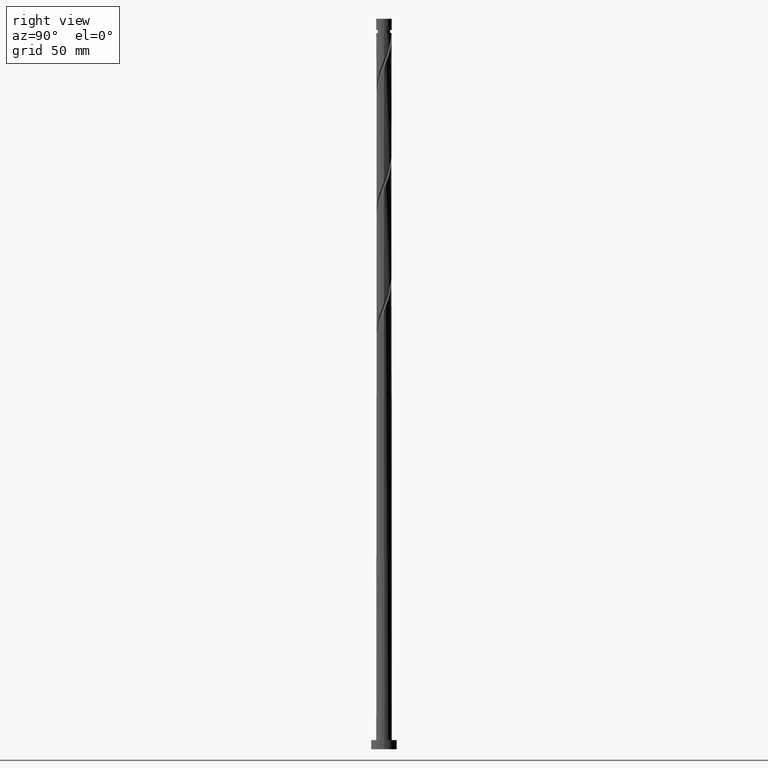
[diagram: clean part render]
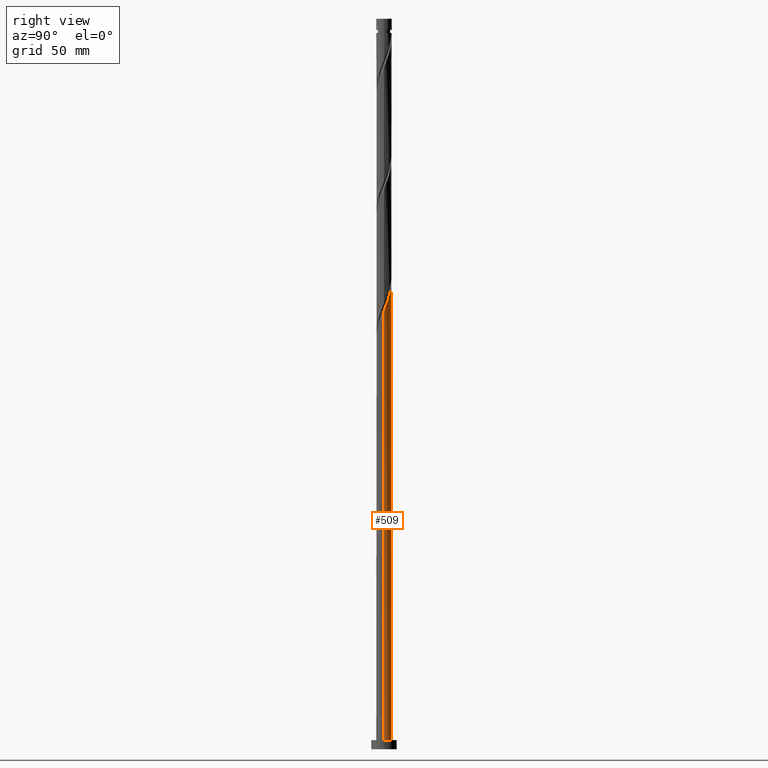
[diagram: same view with one face highlighted and labeled with its STEP entity id]
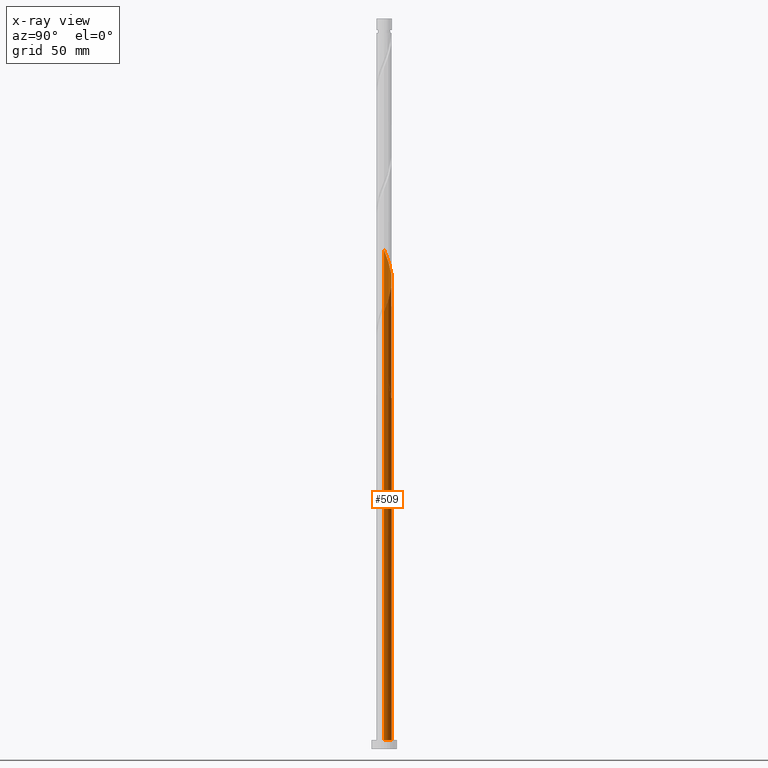
[diagram: x-ray of the same camera — body ghosted, the highlighted face saturated]
A machine part, right view. The second image highlights one B-rep face of the part: STEP entity #509.
The next image is the same camera in x-ray: the body ghosted, the highlighted face saturated — about 0% of this face is hidden behind the body in this view.
In plain terms, the highlighted cylindrical surface (edge-blend (fillet) strip) has radius 4.25 mm, axis along (-0, -0, -1).
Its self-contained STEP definition (entity closure, byte-faithful):
#10 = ORIENTED_EDGE ( 'NONE', *, *, #724, .T. ) ;
#26 = CARTESIAN_POINT ( 'NONE',  ( 3.184126145991878154, 2.814931737433601810, 247.7116386603410945 ) ) ;
#34 = CARTESIAN_POINT ( 'NONE',  ( -3.479987393579910826, 2.480266593869680403, 204.3783053270077232 ) ) ;
#60 = CARTESIAN_POINT ( 'NONE',  ( 3.479987393579918376, 2.480266593869681291, 246.6005275492300655 ) ) ;
#77 = DIRECTION ( 'NONE',  ( 0.000000000000000000, -1.632680918566407345E-14, -1.000000000000000000 ) ) ;
#78 = CARTESIAN_POINT ( 'NONE',  ( -4.187941984382045568, 0.8503978901615346642, 208.8227497714521803 ) ) ;
#104 = CARTESIAN_POINT ( 'NONE',  ( -4.029865467532506074, 1.350068262566401334, 203.2671942158966658 ) ) ;
#152 = CARTESIAN_POINT ( 'NONE',  ( -4.250000000000007105, -4.320092056572194243E-15, 273.3639731945974063 ) ) ;
#172 = EDGE_LOOP ( 'NONE', ( #482, #10, #720, #1893, #240, #1042, #315, #1192 ) ) ;
#194 = CARTESIAN_POINT ( 'NONE',  ( -4.249999999999997335, 0.2033369969687014167, 210.4396444894095737 ) ) ;
#204 = CARTESIAN_POINT ( 'NONE',  ( -3.919617740824329122, 1.702536754950149112, 206.6005275492299802 ) ) ;
#205 = LINE ( 'NONE', #1593, #1937 ) ;
#218 = CARTESIAN_POINT ( 'NONE',  ( 4.230587525814534899, 0.4057452235362851711, 241.0449719936744088 ) ) ;
#240 = ORIENTED_EDGE ( 'NONE', *, *, #1134, .F. ) ;
#246 = CARTESIAN_POINT ( 'NONE',  ( 0.03869430404476644630, 4.249823849388882913, 256.6005275492300370 ) ) ;
#267 = VERTEX_POINT ( 'NONE', #1779 ) ;
#270 = EDGE_CURVE ( 'NONE', #431, #334, #1165, .T. ) ;
#275 = CARTESIAN_POINT ( 'NONE',  ( -1.693210080467173251, 3.898145664723728920, 194.3783053270078369 ) ) ;
#301 = CARTESIAN_POINT ( 'NONE',  ( 4.250000000000007105, 2.899992591609016259E-15, 240.0306398612640919 ) ) ;
#315 = ORIENTED_EDGE ( 'NONE', *, *, #780, .F. ) ;
#334 = VERTEX_POINT ( 'NONE', #1836 ) ;
#343 = VERTEX_POINT ( 'NONE', #1859 ) ;
#345 = CARTESIAN_POINT ( 'NONE',  ( -4.249999999999999112, 1.813242790526680682E-14, 210.9481930149736968 ) ) ;
#354 = CARTESIAN_POINT ( 'NONE',  ( -3.184126145991871049, 2.814931737433600922, 203.2671942158966942 ) ) ;
#355 = DIRECTION ( 'NONE',  ( -0.000000000000000000, -0.000000000000000000, -1.000000000000000000 ) ) ;
#367 = DIRECTION ( 'NONE',  ( -0.000000000000000000, -0.000000000000000000, -1.000000000000000000 ) ) ;
#376 = CARTESIAN_POINT ( 'NONE',  ( -4.053779862603187567, 1.276467322555842276, 207.7116386603411513 ) ) ;
#387 = CARTESIAN_POINT ( 'NONE',  ( -0.9214368028675292699, 4.148910003642071409, 196.6005275492299802 ) ) ;
#431 = VERTEX_POINT ( 'NONE', #1905 ) ;
#460 = VERTEX_POINT ( 'NONE', #1747 ) ;
#461 = CARTESIAN_POINT ( 'NONE',  ( -4.249999999999999112, 1.813242790526680367E-14, 210.9481930149736968 ) ) ;
#468 =( BOUNDED_CURVE ( )  B_SPLINE_CURVE ( 2, ( #345, #194, #1430, #78, #376, #204, #1280, #34, #354, #1592, #815, #692, #1462, #661, #387, #998, #1603, #1290, #1932 ),
 .UNSPECIFIED., .F., .T. ) 
 B_SPLINE_CURVE_WITH_KNOTS ( ( 3, 2, 2, 2, 2, 2, 2, 2, 2, 3 ),
 ( 0.9295286012773117390, 0.9333333333333333481, 0.9416666666666666519, 0.9499999999999999556, 0.9583333333333333703, 0.9666666666666666741, 0.9749999999999999778, 0.9833333333333332815, 0.9916666666666666963, 1.000000000000000000 ),
 .UNSPECIFIED. ) 
 CURVE ( )  GEOMETRIC_REPRESENTATION_ITEM ( )  RATIONAL_B_SPLINE_CURVE ( ( 0.9066196499552315879, 0.9068171577856444232, 0.9090909090909431445, 0.9041108139711915292, 0.9090909090909431445, 0.9041108139711915292, 0.9090909090909431445, 0.9041108139711915292, 0.9090909090909431445, 0.9041108139711915292, 0.9090909090909431445, 0.9041108139711915292, 0.9090909090909431445, 0.9041108139711915292, 0.9090909090909431445, 0.9041108139711915292, 0.9090909090909431445, 0.9041108139711915292, 0.9090909090909431445 ) ) 
 REPRESENTATION_ITEM ( '' )  );
#482 = ORIENTED_EDGE ( 'NONE', *, *, #1360, .F. ) ;
#505 = CARTESIAN_POINT ( 'NONE',  ( 1.763908091860646454, 3.866668882057084922, 252.1560831047855515 ) ) ;
#509 = ADVANCED_FACE ( 'NONE', ( #621 ), #565, .T. ) ;
#533 = AXIS2_PLACEMENT_3D ( 'NONE', #1633, #77, #1105 ) ;
#545 = CARTESIAN_POINT ( 'NONE',  ( -0.4079801816590842845, 4.253890784624646315, 257.7116386603411229 ) ) ;
#555 = CARTESIAN_POINT ( 'NONE',  ( -2.102921699512172893, 3.720182114072092094, 195.4894164381188943 ) ) ;
#564 = CARTESIAN_POINT ( 'NONE',  ( -4.250000000000007105, -4.320092056572194243E-15, 206.6973065279307491 ) ) ;
#565 = CYLINDRICAL_SURFACE ( 'NONE', #798, 4.250000000000000000 ) ;
#572 = CARTESIAN_POINT ( 'NONE',  ( -4.171763359826009321, 0.9265123343778394194, 271.0449719936744941 ) ) ;
#573 = CIRCLE ( 'NONE', #833, 4.250000000000000000 ) ;
#584 = DIRECTION ( 'NONE',  ( -0.000000000000000000, -0.000000000000000000, -1.000000000000000000 ) ) ;
#621 = FACE_OUTER_BOUND ( 'NONE', #172, .T. ) ;
#643 = CARTESIAN_POINT ( 'NONE',  ( 3.699802567202127079, 2.091401674409915756, 245.4894164381188659 ) ) ;
#661 = CARTESIAN_POINT ( 'NONE',  ( -1.357504815986444235, 4.052063093131031302, 197.7116386603411229 ) ) ;
#665 = CARTESIAN_POINT ( 'NONE',  ( 3.919617740824338004, 1.702536754950148001, 244.3783053270077801 ) ) ;
#692 = CARTESIAN_POINT ( 'NONE',  ( -2.170311367734838459, 3.681274670983126995, 199.9338608825632946 ) ) ;
#696 = CARTESIAN_POINT ( 'NONE',  ( -2.102921699512172893, 3.720182114072092094, 262.1560831047855800 ) ) ;
#710 = LINE ( 'NONE', #893, #1872 ) ;
#716 = CARTESIAN_POINT ( 'NONE',  ( 0.4853687897486174130, 4.245756914153122175, 255.4894164381188943 ) ) ;
#720 = ORIENTED_EDGE ( 'NONE', *, *, #2005, .T. ) ;
#721 = DIRECTION ( 'NONE',  ( -1.000000000000000000, 0.000000000000000000, 0.000000000000000000 ) ) ;
#724 = EDGE_CURVE ( 'NONE', #1580, #460, #1151, .T. ) ;
#726 = CARTESIAN_POINT ( 'NONE',  ( 0.9214368028675350430, 4.148910003642077626, 254.3783053270077801 ) ) ;
#729 = CARTESIAN_POINT ( 'NONE',  ( -4.250000000000006217, 0.2421383841473381815, 206.0917152185461703 ) ) ;
#735 = CARTESIAN_POINT ( 'NONE',  ( -0.8457393215406298070, 4.165000000000005365, 258.8227497714522656 ) ) ;
#780 = EDGE_CURVE ( 'NONE', #1566, #334, #468, .T. ) ;
#798 = AXIS2_PLACEMENT_3D ( 'NONE', #1191, #584, #721 ) ;
#809 = CARTESIAN_POINT ( 'NONE',  ( 4.250000000000006217, 0.2033369969686888712, 240.5391883868280729 ) ) ;
#815 = CARTESIAN_POINT ( 'NONE',  ( -2.529288133069334865, 3.415435775990324885, 201.0449719936744657 ) ) ;
#833 = AXIS2_PLACEMENT_3D ( 'NONE', #955, #1408, #969 ) ;
#879 = CARTESIAN_POINT ( 'NONE',  ( -1.283498461422173831, 4.076109215375365302, 259.9338608825633514 ) ) ;
#893 = CARTESIAN_POINT ( 'NONE',  ( -4.250000000000000000, 0.000000000000000000, 400.0000000000000000 ) ) ;
#899 = VECTOR ( 'NONE', #367, 1000.000000000000000 ) ;
#955 = CARTESIAN_POINT ( 'NONE',  ( 0.000000000000000000, 0.000000000000000000, 5.000000000000000000 ) ) ;
#969 = DIRECTION ( 'NONE',  ( 1.000000000000000000, 0.000000000000000000, 0.000000000000000000 ) ) ;
#998 = CARTESIAN_POINT ( 'NONE',  ( -0.4853687897486146929, 4.245756914153113293, 195.4894164381188659 ) ) ;
#1014 =( BOUNDED_CURVE ( )  B_SPLINE_CURVE ( 2, ( #1595, #809, #218, #1411, #1445, #665, #643, #60, #26, #1251, #1887, #1564, #505, #1739, #726, #716, #246, #545, #735, #879, #1606, #696, #1311, #1965, #1494, #1811, #1466, #1188, #1957, #572, #1485, #1326, #1319 ),
 .UNSPECIFIED., .F., .T. ) 
 B_SPLINE_CURVE_WITH_KNOTS ( ( 3, 2, 2, 2, 2, 2, 2, 2, 2, 2, 2, 2, 2, 2, 2, 2, 3 ),
 ( 0.1795286012773115725, 0.1833333333333333481, 0.1916666666666666519, 0.1999999999999999556, 0.2083333333333333703, 0.2166666666666666741, 0.2249999999999999778, 0.2333333333333332815, 0.2416666666666666963, 0.2500000000000000000, 0.2583333333333333037, 0.2666666666666667185, 0.2750000000000000222, 0.2833333333333333259, 0.2916666666666666297, 0.3000000000000000444, 0.3045286012773118500 ),
 .UNSPECIFIED. ) 
 CURVE ( )  GEOMETRIC_REPRESENTATION_ITEM ( )  RATIONAL_B_SPLINE_CURVE ( ( 0.9066196499552376942, 0.9068171577856505294, 0.9090909090909493617, 0.9041108139711975245, 0.9090909090909493617, 0.9041108139711975245, 0.9090909090909493617, 0.9041108139711975245, 0.9090909090909493617, 0.9041108139711975245, 0.9090909090909493617, 0.9041108139711975245, 0.9090909090909493617, 0.9041108139711975245, 0.9090909090909493617, 0.9041108139711975245, 0.9090909090909493617, 0.9041108139711975245, 0.9090909090909493617, 0.9041108139711975245, 0.9090909090909493617, 0.9041108139711975245, 0.9090909090909493617, 0.9041108139711975245, 0.9090909090909493617, 0.9041108139711975245, 0.9090909090909493617, 0.9041108139711975245, 0.9090909090909493617, 0.9041108139711975245, 0.9090909090909493617, 0.9063845652764962457, 0.9066196499552376942 ) ) 
 REPRESENTATION_ITEM ( '' )  );
#1033 = CARTESIAN_POINT ( 'NONE',  ( -3.434248951075720591, 2.543220159202970621, 199.9338608825634083 ) ) ;
#1041 = CARTESIAN_POINT ( 'NONE',  ( -0.8457393215406295850, 4.165000000000005365, 192.1560831047855515 ) ) ;
#1042 = ORIENTED_EDGE ( 'NONE', *, *, #270, .T. ) ;
#1105 = DIRECTION ( 'NONE',  ( 0.000000000000000000, 1.000000000000000000, -1.959217102279687994E-14 ) ) ;
#1134 = EDGE_CURVE ( 'NONE', #431, #343, #1553, .T. ) ;
#1151 = LINE ( 'NONE', #1734, #899 ) ;
#1164 = CARTESIAN_POINT ( 'NONE',  ( -4.222498213536512779, 0.4827098887333987065, 205.4894164381188943 ) ) ;
#1165 = CIRCLE ( 'NONE', #533, 4.250000000000000000 ) ;
#1188 = CARTESIAN_POINT ( 'NONE',  ( -3.887967575239006379, 1.773624190754962360, 268.8227497714522656 ) ) ;
#1191 = CARTESIAN_POINT ( 'NONE',  ( 0.000000000000000000, 0.000000000000000000, 400.0000000000000000 ) ) ;
#1192 = ORIENTED_EDGE ( 'NONE', *, *, #1858, .F. ) ;
#1213 = EDGE_CURVE ( 'NONE', #343, #267, #710, .T. ) ;
#1251 = CARTESIAN_POINT ( 'NONE',  ( 2.888264898403836156, 3.149596880997526327, 248.8227497714522087 ) ) ;
#1280 = CARTESIAN_POINT ( 'NONE',  ( -3.699802567202120862, 2.091401674409914424, 205.4894164381188943 ) ) ;
#1290 = CARTESIAN_POINT ( 'NONE',  ( 0.4079801816590876706, 4.253890784624636545, 193.2671942158966942 ) ) ;
#1304 = CARTESIAN_POINT ( 'NONE',  ( -3.132343059735661850, 2.872442681086236238, 198.8227497714522372 ) ) ;
#1311 = CARTESIAN_POINT ( 'NONE',  ( -2.466679433953887557, 3.460923658520796753, 263.2671942158966658 ) ) ;
#1313 = CARTESIAN_POINT ( 'NONE',  ( -2.830437168395603553, 3.201665202969502300, 197.7116386603411229 ) ) ;
#1319 = CARTESIAN_POINT ( 'NONE',  ( -4.250000000000007105, -4.320092056572194243E-15, 273.3639731945974063 ) ) ;
#1326 = CARTESIAN_POINT ( 'NONE',  ( -4.250000000000007994, 0.2421383841473189469, 272.7583818852128843 ) ) ;
#1328 = CARTESIAN_POINT ( 'NONE',  ( -1.283498461422173831, 4.076109215375365302, 193.2671942158966942 ) ) ;
#1360 = EDGE_CURVE ( 'NONE', #1580, #1700, #1014, .T. ) ;
#1408 = DIRECTION ( 'NONE',  ( 0.000000000000000000, 0.000000000000000000, 1.000000000000000000 ) ) ;
#1411 = CARTESIAN_POINT ( 'NONE',  ( 4.187941984382050897, 0.8503978901615344421, 242.1560831047855800 ) ) ;
#1430 = CARTESIAN_POINT ( 'NONE',  ( -4.230587525814526906, 0.4057452235362890569, 209.9338608825632946 ) ) ;
#1445 = CARTESIAN_POINT ( 'NONE',  ( 4.053779862603193784, 1.276467322555841166, 243.2671942158967227 ) ) ;
#1462 = CARTESIAN_POINT ( 'NONE',  ( -1.763908091860642458, 3.866668882057079148, 198.8227497714522372 ) ) ;
#1466 = CARTESIAN_POINT ( 'NONE',  ( -3.661108263157362597, 2.158422174978966712, 267.7116386603411229 ) ) ;
#1468 = CARTESIAN_POINT ( 'NONE',  ( -3.887967575239006379, 1.773624190754962360, 202.1560831047855515 ) ) ;
#1479 = CARTESIAN_POINT ( 'NONE',  ( -4.171763359826009321, 0.9265123343778394194, 204.3783053270078085 ) ) ;
#1485 = CARTESIAN_POINT ( 'NONE',  ( -4.222498213536512779, 0.4827098887333987065, 272.1560831047855800 ) ) ;
#1487 = CARTESIAN_POINT ( 'NONE',  ( -3.661108263157362597, 2.158422174978966712, 201.0449719936744088 ) ) ;
#1494 = CARTESIAN_POINT ( 'NONE',  ( -3.132343059735661850, 2.872442681086236238, 265.4894164381188375 ) ) ;
#1553 =( BOUNDED_CURVE ( )  B_SPLINE_CURVE ( 2, ( #1041, #1328, #275, #555, #1642, #1313, #1304, #1033, #1487, #1468, #104, #1479, #1164, #729, #564 ),
 .UNSPECIFIED., .F., .T. ) 
 B_SPLINE_CURVE_WITH_KNOTS ( ( 3, 2, 2, 2, 2, 2, 2, 3 ),
 ( 0.000000000000000000, 0.008333333333333303727, 0.01666666666666671848, 0.02500000000000002220, 0.03333333333333332593, 0.04166666666666662966, 0.05000000000000004441, 0.05452860127731149614 ),
 .UNSPECIFIED. ) 
 CURVE ( )  GEOMETRIC_REPRESENTATION_ITEM ( )  RATIONAL_B_SPLINE_CURVE ( ( 0.9090909090909493617, 0.9041108139711975245, 0.9090909090909493617, 0.9041108139711975245, 0.9090909090909493617, 0.9041108139711975245, 0.9090909090909493617, 0.9041108139711975245, 0.9090909090909493617, 0.9041108139711975245, 0.9090909090909493617, 0.9041108139711975245, 0.9090909090909493617, 0.9063845652764964678, 0.9066196499552376942 ) ) 
 REPRESENTATION_ITEM ( '' )  );
#1564 = CARTESIAN_POINT ( 'NONE',  ( 2.170311367734846453, 3.681274670983131880, 251.0449719936745510 ) ) ;
#1566 = VERTEX_POINT ( 'NONE', #461 ) ;
#1580 = VERTEX_POINT ( 'NONE', #301 ) ;
#1592 = CARTESIAN_POINT ( 'NONE',  ( -2.888264898403830827, 3.149596880997521886, 202.1560831047855515 ) ) ;
#1593 = CARTESIAN_POINT ( 'NONE',  ( -4.250000000000000000, 0.000000000000000000, 400.0000000000000000 ) ) ;
#1595 = CARTESIAN_POINT ( 'NONE',  ( 4.250000000000007105, 2.899992591609015865E-15, 240.0306398612640635 ) ) ;
#1603 = CARTESIAN_POINT ( 'NONE',  ( -0.03869430404476330992, 4.249823849388876695, 194.3783053270077517 ) ) ;
#1606 = CARTESIAN_POINT ( 'NONE',  ( -1.693210080467173251, 3.898145664723728920, 261.0449719936744373 ) ) ;
#1633 = CARTESIAN_POINT ( 'NONE',  ( 0.000000000000000000, 0.000000000000000000, 192.1560831047856084 ) ) ;
#1642 = CARTESIAN_POINT ( 'NONE',  ( -2.466679433953887557, 3.460923658520796753, 196.6005275492300086 ) ) ;
#1663 = DIRECTION ( 'NONE',  ( -0.000000000000000000, -0.000000000000000000, -1.000000000000000000 ) ) ;
#1700 = VERTEX_POINT ( 'NONE', #152 ) ;
#1734 = CARTESIAN_POINT ( 'NONE',  ( 4.250000000000000000, 5.204748896376249713E-16, 400.0000000000000000 ) ) ;
#1739 = CARTESIAN_POINT ( 'NONE',  ( 1.357504815986449787, 4.052063093131035743, 253.2671942158966658 ) ) ;
#1747 = CARTESIAN_POINT ( 'NONE',  ( 4.250000000000000000, 5.204748896376249713E-16, 5.000000000000000000 ) ) ;
#1779 = CARTESIAN_POINT ( 'NONE',  ( -4.250000000000000000, 0.000000000000000000, 5.000000000000000000 ) ) ;
#1811 = CARTESIAN_POINT ( 'NONE',  ( -3.434248951075720591, 2.543220159202970621, 266.6005275492300939 ) ) ;
#1836 = CARTESIAN_POINT ( 'NONE',  ( 0.8457393215406313614, 4.165000000000000036, 192.1560831047855515 ) ) ;
#1858 = EDGE_CURVE ( 'NONE', #1700, #1566, #205, .T. ) ;
#1859 = CARTESIAN_POINT ( 'NONE',  ( -4.250000000000007105, -4.320092056572194243E-15, 206.6973065279307491 ) ) ;
#1872 = VECTOR ( 'NONE', #1663, 1000.000000000000000 ) ;
#1887 = CARTESIAN_POINT ( 'NONE',  ( 2.529288133069340638, 3.415435775990328438, 249.9338608825633230 ) ) ;
#1893 = ORIENTED_EDGE ( 'NONE', *, *, #1213, .F. ) ;
#1905 = CARTESIAN_POINT ( 'NONE',  ( -0.8457393215406295850, 4.165000000000005365, 192.1560831047855515 ) ) ;
#1932 = CARTESIAN_POINT ( 'NONE',  ( 0.8457393215406313614, 4.165000000000000036, 192.1560831047855515 ) ) ;
#1937 = VECTOR ( 'NONE', #355, 1000.000000000000000 ) ;
#1957 = CARTESIAN_POINT ( 'NONE',  ( -4.029865467532506074, 1.350068262566401334, 269.9338608825633514 ) ) ;
#1965 = CARTESIAN_POINT ( 'NONE',  ( -2.830437168395603553, 3.201665202969502300, 264.3783053270078653 ) ) ;
#2005 = EDGE_CURVE ( 'NONE', #460, #267, #573, .T. ) ;